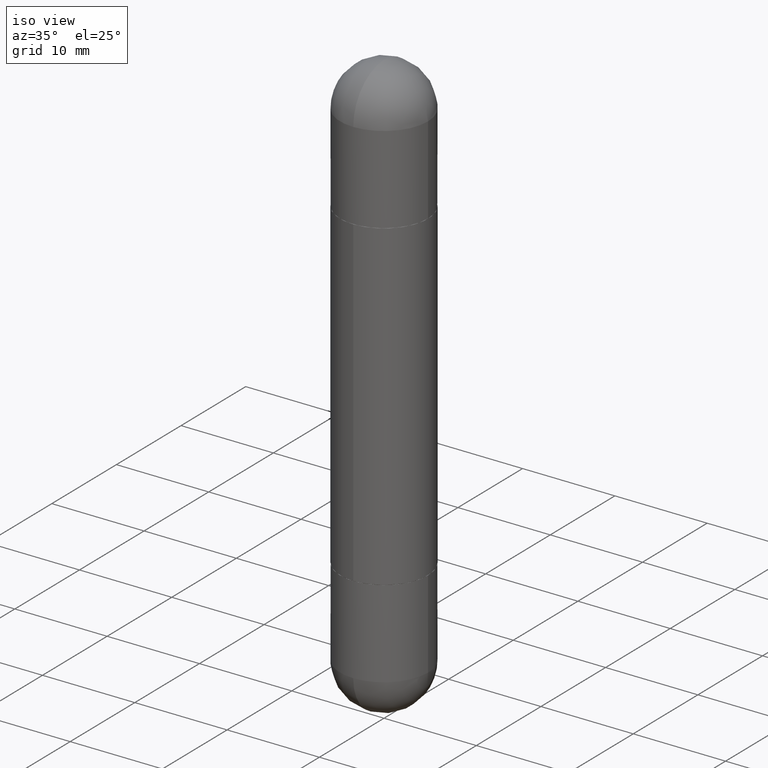
[diagram: clean part render]
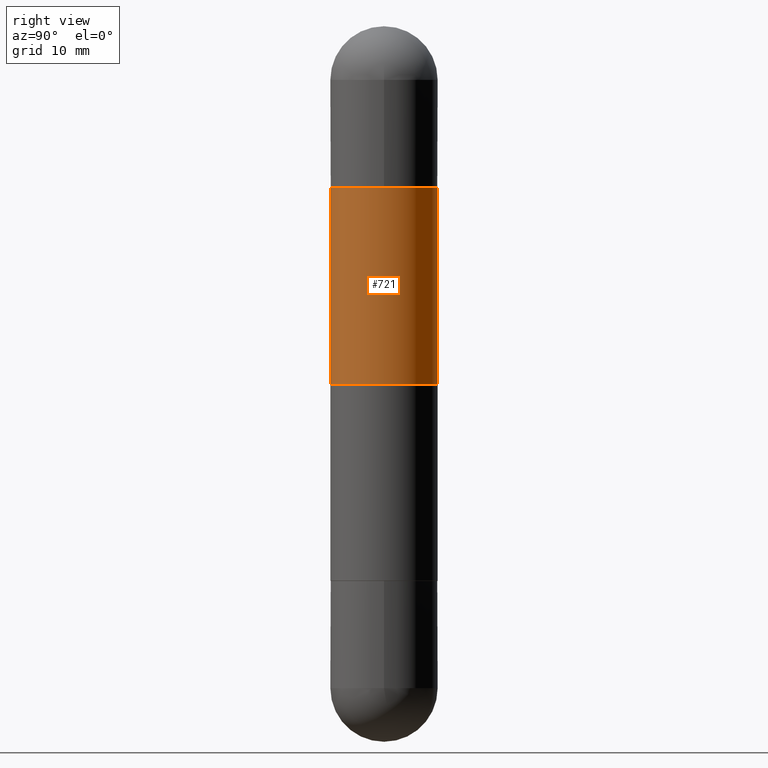
[diagram: tour spotlight — one face highlighted and labeled with its STEP entity id]
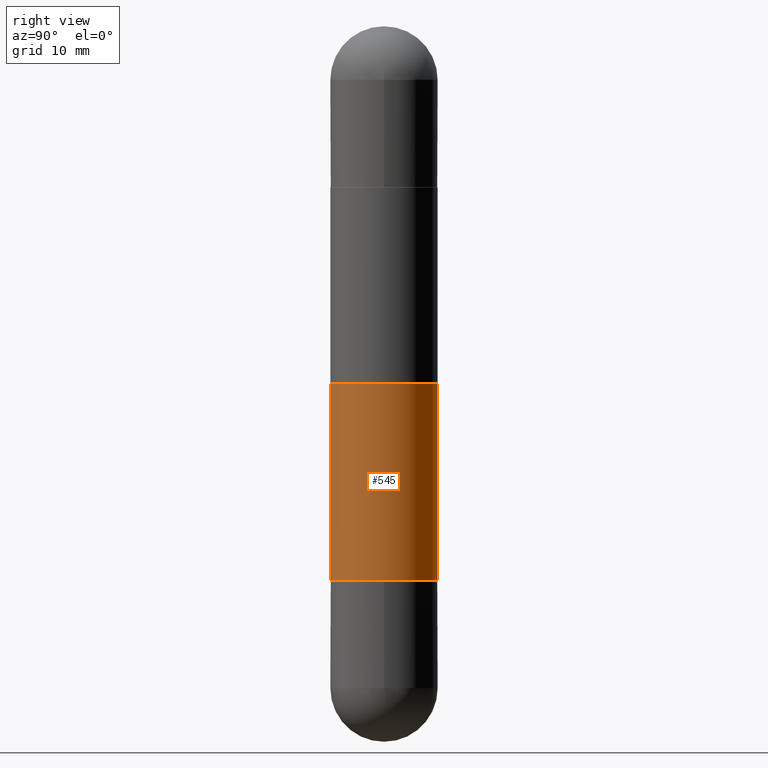
[diagram: tour spotlight — one face highlighted and labeled with its STEP entity id]
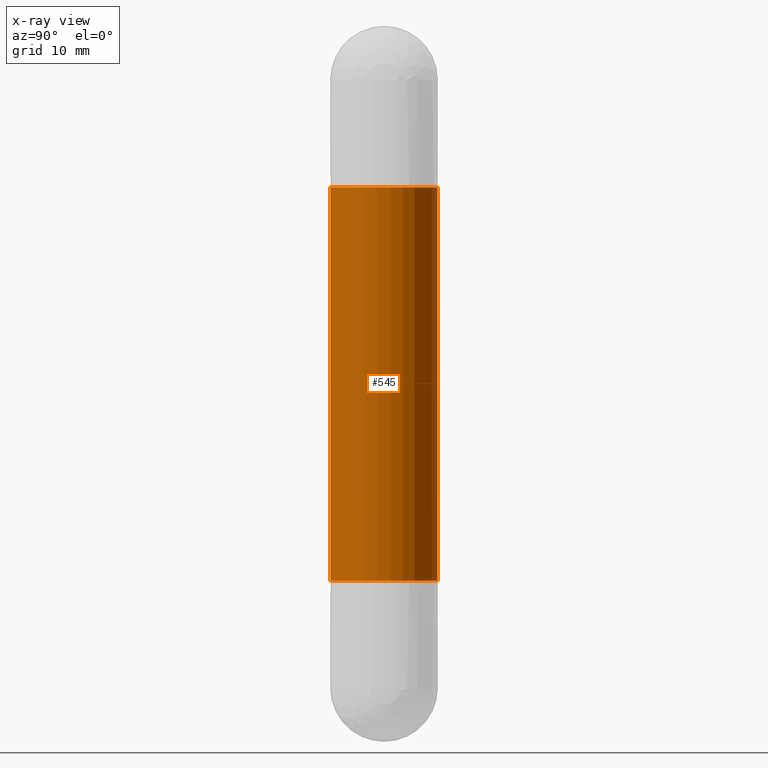
[diagram: x-ray of the same camera — body ghosted, this tour face saturated]
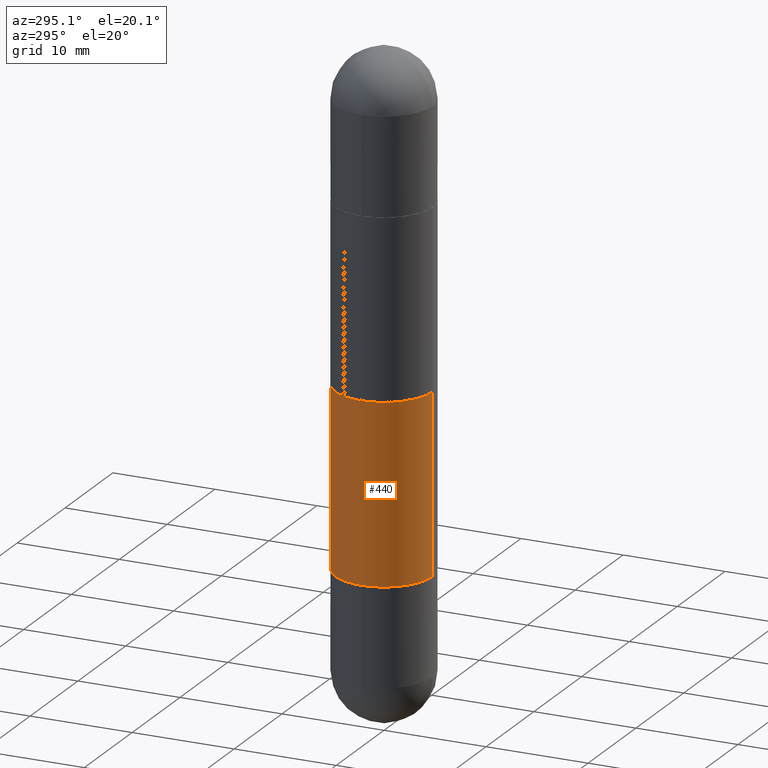
[diagram: tour spotlight — one face highlighted and labeled with its STEP entity id]
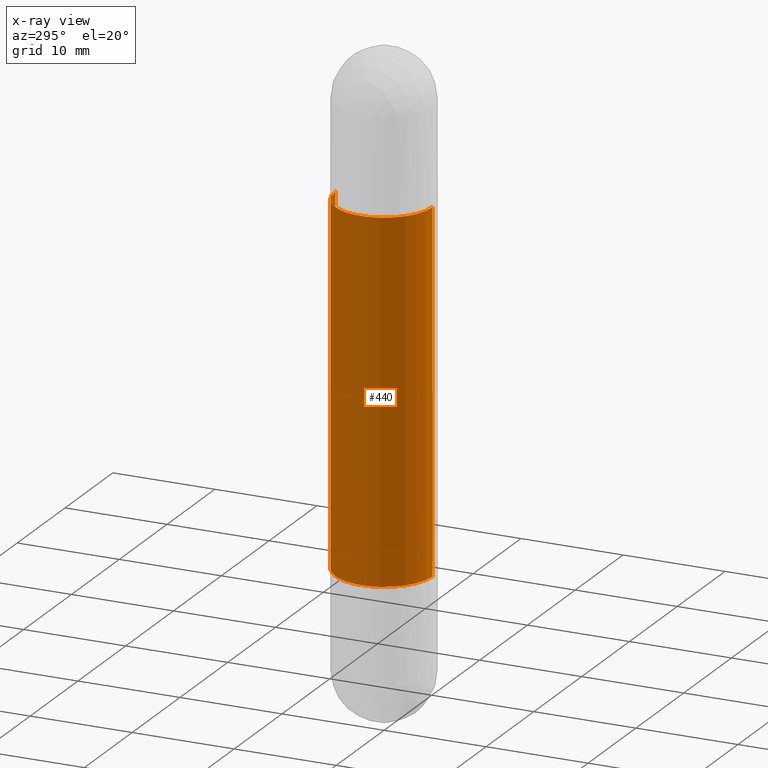
[diagram: x-ray of the same camera — body ghosted, this tour face saturated]
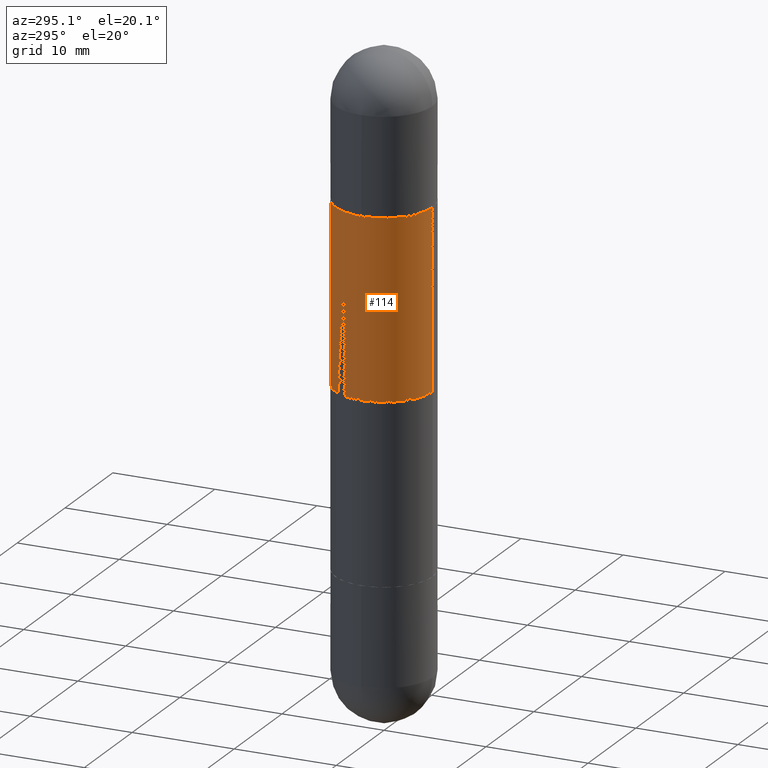
[diagram: tour spotlight — one face highlighted and labeled with its STEP entity id]
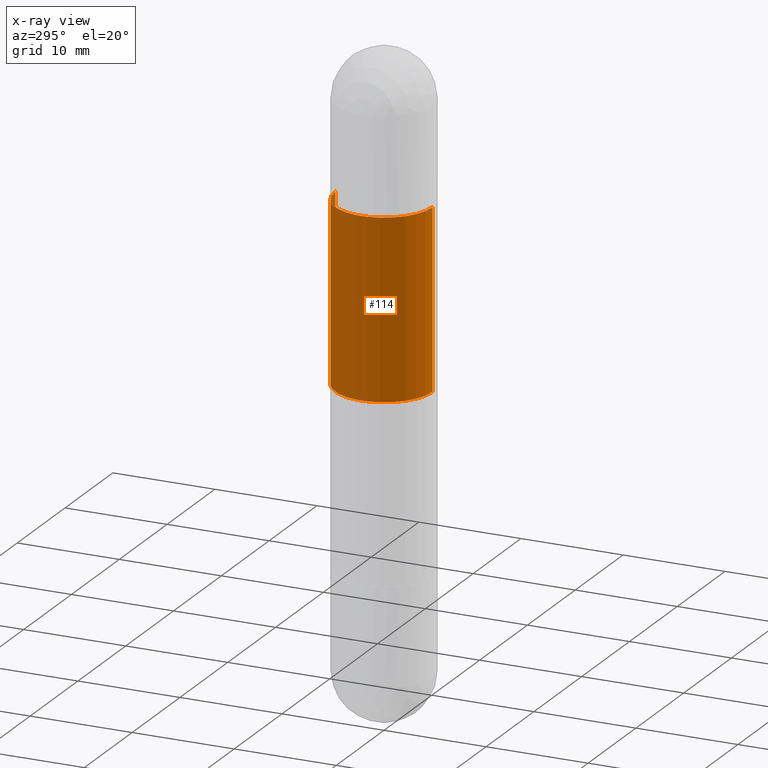
[diagram: x-ray of the same camera — body ghosted, this tour face saturated]
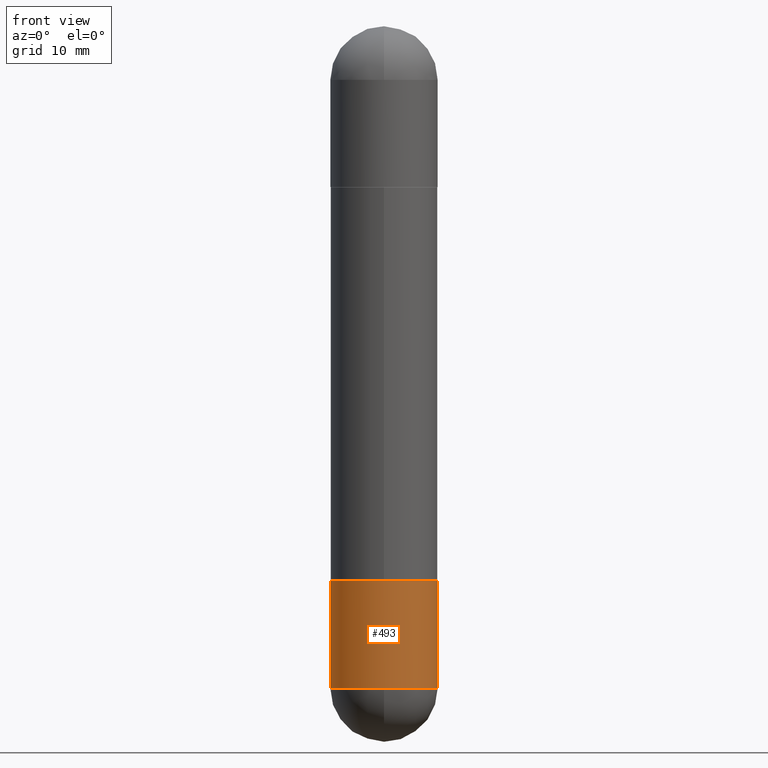
[diagram: tour spotlight — one face highlighted and labeled with its STEP entity id]
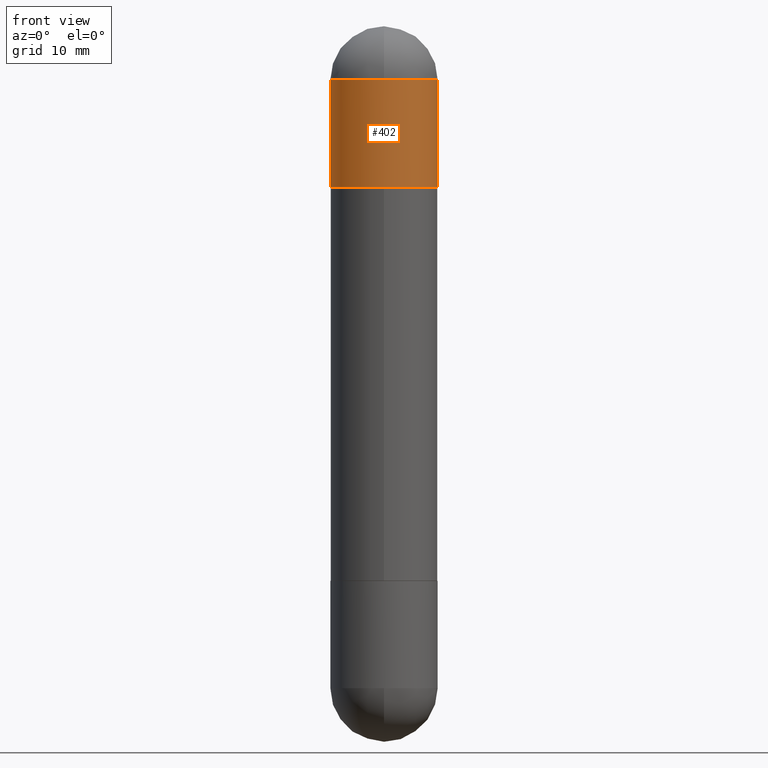
[diagram: tour spotlight — one face highlighted and labeled with its STEP entity id]
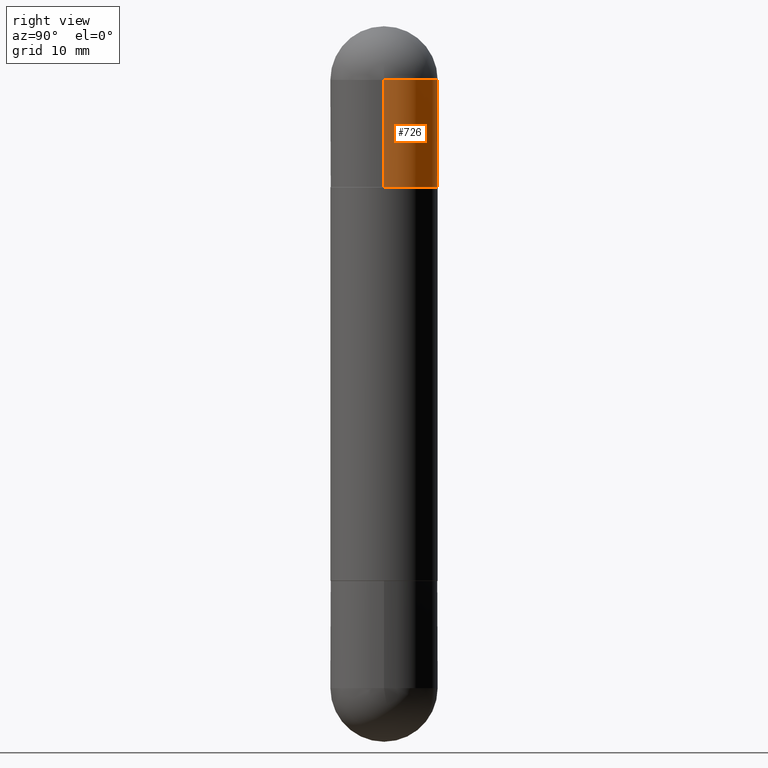
[diagram: tour spotlight — one face highlighted and labeled with its STEP entity id]
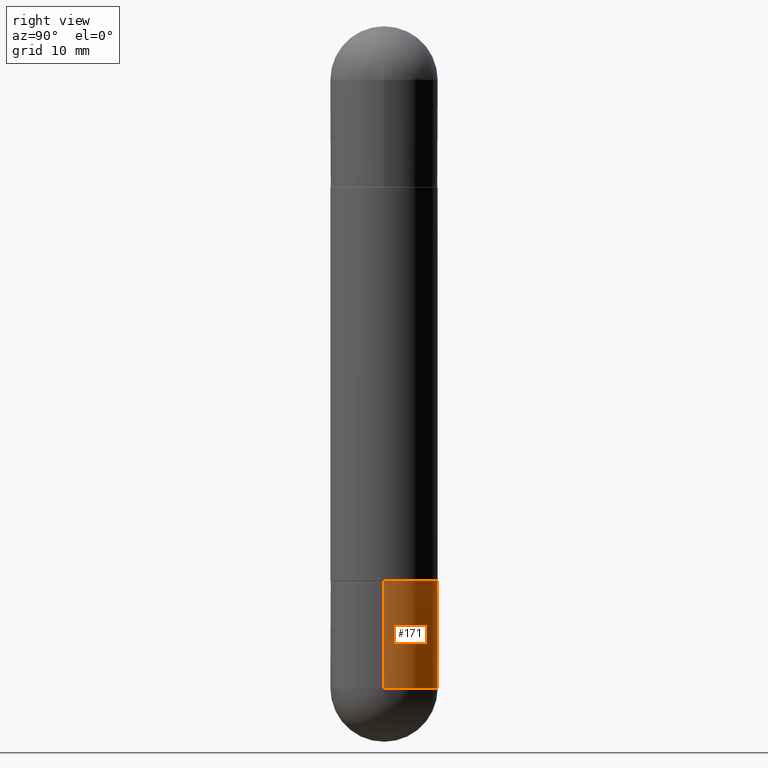
[diagram: tour spotlight — one face highlighted and labeled with its STEP entity id]
A machine part: a face-by-face anatomy tour. The part has 29 B-rep faces; the first image is the clean iso view, then the 8 largest visible faces are spotlighted one at a time (largest first), each with its STEP entity span.

Face 1 — right view, entity #721. In plain terms, the highlighted cylindrical surface (partial cylindrical patch) has radius 4.7625 mm, axis along (-0, 0, -1).
Definition (entity closure, byte-faithful):
#14 = DIRECTION ( 'NONE',  ( -2.444813990974840691E-29, 3.492419071494056237E-15, -1.000000000000000000 ) ) ;
#49 = DIRECTION ( 'NONE',  ( -6.982962677686265922E-15, -1.000000000000000000, -3.642463991552347014E-15 ) ) ;
#57 = ORIENTED_EDGE ( 'NONE', *, *, #349, .F. ) ;
#78 = CARTESIAN_POINT ( 'NONE',  ( 1.286343374582209894E-15, 0.1874999999999957534, -1.250000000000000222 ) ) ;
#101 = VECTOR ( 'NONE', #560, 39.37007874015748143 ) ;
#110 = CARTESIAN_POINT ( 'NONE',  ( -1.309305502066175797E-15, -0.1875000000000001110, -2.500000000000001332 ) ) ;
#125 = CARTESIAN_POINT ( 'NONE',  ( 3.056017488718551494E-29, -4.365523839367571874E-15, -1.250000000000000222 ) ) ;
#148 = EDGE_CURVE ( 'NONE', #385, #211, #715, .T. ) ;
#178 = CARTESIAN_POINT ( 'NONE',  ( 1.286343374582162760E-15, 0.1875000000000001110, -2.500000000000000000 ) ) ;
#211 = VERTEX_POINT ( 'NONE', #357 ) ;
#298 = CYLINDRICAL_SURFACE ( 'NONE', #779, 0.1875000000000001110 ) ;
#313 = DIRECTION ( 'NONE',  ( -2.444813990974840971E-29, 3.492419071494056237E-15, -1.000000000000000000 ) ) ;
#321 = VERTEX_POINT ( 'NONE', #579 ) ;
#322 = DIRECTION ( 'NONE',  ( -1.000000000000000000, 0.000000000000000000, 0.000000000000000000 ) ) ;
#338 = ORIENTED_EDGE ( 'NONE', *, *, #148, .F. ) ;
#341 = AXIS2_PLACEMENT_3D ( 'NONE', #125, #710, #322 ) ;
#349 = EDGE_CURVE ( 'NONE', #747, #321, #811, .T. ) ;
#357 = CARTESIAN_POINT ( 'NONE',  ( 1.286343374582210880E-15, 0.1874999999999935052, -0.5630000000000001670 ) ) ;
#366 = CARTESIAN_POINT ( 'NONE',  ( 0.000000000000000000, 0.000000000000000000, -2.500000000000000444 ) ) ;
#385 = VERTEX_POINT ( 'NONE', #805 ) ;
#406 = ORIENTED_EDGE ( 'NONE', *, *, #768, .F. ) ;
#448 = ORIENTED_EDGE ( 'NONE', *, *, #685, .T. ) ;
#536 = AXIS2_PLACEMENT_3D ( 'NONE', #745, #798, #49 ) ;
#560 = DIRECTION ( 'NONE',  ( -2.444813990974840971E-29, 3.492419071494056237E-15, -1.000000000000000000 ) ) ;
#570 = EDGE_LOOP ( 'NONE', ( #406, #338, #448, #57 ) ) ;
#579 = CARTESIAN_POINT ( 'NONE',  ( -1.309305502066136946E-15, -0.1875000000000044964, -1.250000000000000222 ) ) ;
#634 = VECTOR ( 'NONE', #313, 39.37007874015748143 ) ;
#654 = LINE ( 'NONE', #110, #101 ) ;
#685 = EDGE_CURVE ( 'NONE', #385, #321, #654, .T. ) ;
#710 = DIRECTION ( 'NONE',  ( -0.000000000000000000, -0.000000000000000000, -1.000000000000000000 ) ) ;
#715 = CIRCLE ( 'NONE', #536, 0.1875000000000002220 ) ;
#721 = ADVANCED_FACE ( 'NONE', ( #813 ), #298, .T. ) ;
#745 = CARTESIAN_POINT ( 'NONE',  ( 4.735604700518265661E-29, -6.764815741483986322E-15, -0.5630000000000008331 ) ) ;
#747 = VERTEX_POINT ( 'NONE', #78 ) ;
#758 = LINE ( 'NONE', #178, #634 ) ;
#762 = DIRECTION ( 'NONE',  ( -6.982962677686266711E-15, -1.000000000000000000, -2.913971193241879189E-15 ) ) ;
#768 = EDGE_CURVE ( 'NONE', #211, #747, #758, .T. ) ;
#779 = AXIS2_PLACEMENT_3D ( 'NONE', #366, #14, #762 ) ;
#798 = DIRECTION ( 'NONE',  ( 2.444813990974840691E-29, -3.492419071494056237E-15, 1.000000000000000000 ) ) ;
#805 = CARTESIAN_POINT ( 'NONE',  ( -1.309305502066128860E-15, -0.1875000000000069389, -0.5630000000000014992 ) ) ;
#811 = CIRCLE ( 'NONE', #341, 0.1875000000000001110 ) ;
#813 = FACE_OUTER_BOUND ( 'NONE', #570, .T. ) ;

Face 2 — right view, entity #545. An x-ray twin of the same camera follows (body ghosted, this face saturated) — the face is partly hidden behind the body. In plain terms, the highlighted cylindrical surface (partial cylindrical patch) has radius 4.7625 mm, axis along (-0, 0, -1).
Definition (entity closure, byte-faithful):
#29 = CARTESIAN_POINT ( 'NONE',  ( 0.000000000000000000, 0.000000000000000000, -2.500000000000000444 ) ) ;
#53 = VERTEX_POINT ( 'NONE', #267 ) ;
#89 = ORIENTED_EDGE ( 'NONE', *, *, #683, .F. ) ;
#94 = CYLINDRICAL_SURFACE ( 'NONE', #283, 0.1875000000000001110 ) ;
#111 = VERTEX_POINT ( 'NONE', #286 ) ;
#123 = CARTESIAN_POINT ( 'NONE',  ( 4.735604700518265661E-29, -6.764815741483986322E-15, -0.5630000000000008331 ) ) ;
#195 = ORIENTED_EDGE ( 'NONE', *, *, #786, .T. ) ;
#205 = DIRECTION ( 'NONE',  ( -6.982962677686265922E-15, -1.000000000000000000, -3.642463991552347014E-15 ) ) ;
#219 = DIRECTION ( 'NONE',  ( -6.982962677686265922E-15, -1.000000000000000000, 2.913971193241877216E-15 ) ) ;
#225 = DIRECTION ( 'NONE',  ( -2.444813990974840691E-29, 3.492419071494056237E-15, -1.000000000000000000 ) ) ;
#233 = ORIENTED_EDGE ( 'NONE', *, *, #557, .T. ) ;
#249 = DIRECTION ( 'NONE',  ( -2.444813990974840971E-29, 3.492419071494056237E-15, -1.000000000000000000 ) ) ;
#257 = VECTOR ( 'NONE', #588, 39.37007874015748143 ) ;
#267 = CARTESIAN_POINT ( 'NONE',  ( 1.286343374582210880E-15, 0.1874999999999935052, -0.5630000000000001670 ) ) ;
#273 = CIRCLE ( 'NONE', #729, 0.1875000000000002220 ) ;
#278 = VERTEX_POINT ( 'NONE', #318 ) ;
#283 = AXIS2_PLACEMENT_3D ( 'NONE', #29, #225, #612 ) ;
#286 = CARTESIAN_POINT ( 'NONE',  ( 1.286343374582193722E-15, 0.1874999999999934497, -1.937000000000000499 ) ) ;
#300 = LINE ( 'NONE', #436, #607 ) ;
#318 = CARTESIAN_POINT ( 'NONE',  ( -1.309305502066129254E-15, -0.1875000000000069944, -1.936999999999999389 ) ) ;
#331 = LINE ( 'NONE', #362, #257 ) ;
#362 = CARTESIAN_POINT ( 'NONE',  ( -1.309305502066175797E-15, -0.1875000000000001110, -2.500000000000001332 ) ) ;
#427 = CARTESIAN_POINT ( 'NONE',  ( -1.309305502066128860E-15, -0.1875000000000069389, -0.5630000000000014992 ) ) ;
#436 = CARTESIAN_POINT ( 'NONE',  ( 1.286343374582162760E-15, 0.1875000000000001110, -2.500000000000000000 ) ) ;
#466 = FACE_OUTER_BOUND ( 'NONE', #750, .T. ) ;
#545 = ADVANCED_FACE ( 'NONE', ( #466 ), #94, .T. ) ;
#557 = EDGE_CURVE ( 'NONE', #278, #111, #273, .T. ) ;
#588 = DIRECTION ( 'NONE',  ( -2.444813990974840971E-29, 3.492419071494056237E-15, -1.000000000000000000 ) ) ;
#596 = CIRCLE ( 'NONE', #717, 0.1875000000000002220 ) ;
#601 = CARTESIAN_POINT ( 'NONE',  ( 4.735604700518265661E-29, -6.764815741483986322E-15, -1.936999999999999833 ) ) ;
#607 = VECTOR ( 'NONE', #249, 39.37007874015748143 ) ;
#612 = DIRECTION ( 'NONE',  ( -6.982962677686266711E-15, -1.000000000000000000, -2.913971193241879189E-15 ) ) ;
#633 = DIRECTION ( 'NONE',  ( 2.444813990974840691E-29, -3.492419071494056237E-15, 1.000000000000000000 ) ) ;
#649 = ORIENTED_EDGE ( 'NONE', *, *, #711, .F. ) ;
#676 = DIRECTION ( 'NONE',  ( -2.444813990974840691E-29, 3.492419071494056237E-15, 1.000000000000000000 ) ) ;
#683 = EDGE_CURVE ( 'NONE', #53, #111, #300, .T. ) ;
#711 = EDGE_CURVE ( 'NONE', #817, #53, #596, .T. ) ;
#717 = AXIS2_PLACEMENT_3D ( 'NONE', #123, #633, #205 ) ;
#729 = AXIS2_PLACEMENT_3D ( 'NONE', #601, #676, #219 ) ;
#750 = EDGE_LOOP ( 'NONE', ( #89, #649, #195, #233 ) ) ;
#786 = EDGE_CURVE ( 'NONE', #817, #278, #331, .T. ) ;
#817 = VERTEX_POINT ( 'NONE', #427 ) ;

Face 3 — auxiliary view, entity #440. An x-ray twin of the same camera follows (body ghosted, this face saturated) — the face is partly hidden behind the body. In plain terms, the highlighted cylindrical surface (partial cylindrical patch) has radius 4.7625 mm, axis along (-0, 0, -1).
Definition (entity closure, byte-faithful):
#26 = DIRECTION ( 'NONE',  ( -6.982962677686265922E-15, -1.000000000000000000, -3.642463991552347014E-15 ) ) ;
#53 = VERTEX_POINT ( 'NONE', #267 ) ;
#70 = CARTESIAN_POINT ( 'NONE',  ( 4.735604700518265661E-29, -6.764815741483986322E-15, -1.936999999999999833 ) ) ;
#87 = CARTESIAN_POINT ( 'NONE',  ( 4.735604700518265661E-29, -6.764815741483986322E-15, -0.5630000000000008331 ) ) ;
#111 = VERTEX_POINT ( 'NONE', #286 ) ;
#138 = CARTESIAN_POINT ( 'NONE',  ( 0.000000000000000000, 0.000000000000000000, -2.500000000000000444 ) ) ;
#201 = FACE_OUTER_BOUND ( 'NONE', #458, .T. ) ;
#228 = AXIS2_PLACEMENT_3D ( 'NONE', #70, #636, #756 ) ;
#230 = CIRCLE ( 'NONE', #498, 0.1875000000000002220 ) ;
#249 = DIRECTION ( 'NONE',  ( -2.444813990974840971E-29, 3.492419071494056237E-15, -1.000000000000000000 ) ) ;
#257 = VECTOR ( 'NONE', #588, 39.37007874015748143 ) ;
#264 = ORIENTED_EDGE ( 'NONE', *, *, #786, .F. ) ;
#267 = CARTESIAN_POINT ( 'NONE',  ( 1.286343374582210880E-15, 0.1874999999999935052, -0.5630000000000001670 ) ) ;
#277 = DIRECTION ( 'NONE',  ( -6.982962677686266711E-15, -1.000000000000000000, -2.913971193241879189E-15 ) ) ;
#278 = VERTEX_POINT ( 'NONE', #318 ) ;
#286 = CARTESIAN_POINT ( 'NONE',  ( 1.286343374582193722E-15, 0.1874999999999934497, -1.937000000000000499 ) ) ;
#300 = LINE ( 'NONE', #436, #607 ) ;
#318 = CARTESIAN_POINT ( 'NONE',  ( -1.309305502066129254E-15, -0.1875000000000069944, -1.936999999999999389 ) ) ;
#331 = LINE ( 'NONE', #362, #257 ) ;
#332 = EDGE_CURVE ( 'NONE', #111, #278, #400, .T. ) ;
#344 = DIRECTION ( 'NONE',  ( 2.444813990974840691E-29, -3.492419071494056237E-15, 1.000000000000000000 ) ) ;
#362 = CARTESIAN_POINT ( 'NONE',  ( -1.309305502066175797E-15, -0.1875000000000001110, -2.500000000000001332 ) ) ;
#399 = CYLINDRICAL_SURFACE ( 'NONE', #567, 0.1875000000000001110 ) ;
#400 = CIRCLE ( 'NONE', #228, 0.1875000000000002220 ) ;
#427 = CARTESIAN_POINT ( 'NONE',  ( -1.309305502066128860E-15, -0.1875000000000069389, -0.5630000000000014992 ) ) ;
#436 = CARTESIAN_POINT ( 'NONE',  ( 1.286343374582162760E-15, 0.1875000000000001110, -2.500000000000000000 ) ) ;
#437 = ORIENTED_EDGE ( 'NONE', *, *, #683, .T. ) ;
#440 = ADVANCED_FACE ( 'NONE', ( #201 ), #399, .T. ) ;
#458 = EDGE_LOOP ( 'NONE', ( #517, #437, #638, #264 ) ) ;
#498 = AXIS2_PLACEMENT_3D ( 'NONE', #87, #344, #26 ) ;
#516 = EDGE_CURVE ( 'NONE', #53, #817, #230, .T. ) ;
#517 = ORIENTED_EDGE ( 'NONE', *, *, #516, .F. ) ;
#519 = DIRECTION ( 'NONE',  ( -2.444813990974840691E-29, 3.492419071494056237E-15, -1.000000000000000000 ) ) ;
#567 = AXIS2_PLACEMENT_3D ( 'NONE', #138, #519, #277 ) ;
#588 = DIRECTION ( 'NONE',  ( -2.444813990974840971E-29, 3.492419071494056237E-15, -1.000000000000000000 ) ) ;
#607 = VECTOR ( 'NONE', #249, 39.37007874015748143 ) ;
#636 = DIRECTION ( 'NONE',  ( -2.444813990974840691E-29, 3.492419071494056237E-15, 1.000000000000000000 ) ) ;
#638 = ORIENTED_EDGE ( 'NONE', *, *, #332, .T. ) ;
#683 = EDGE_CURVE ( 'NONE', #53, #111, #300, .T. ) ;
#756 = DIRECTION ( 'NONE',  ( -6.982962677686265922E-15, -1.000000000000000000, 2.913971193241877216E-15 ) ) ;
#786 = EDGE_CURVE ( 'NONE', #817, #278, #331, .T. ) ;
#817 = VERTEX_POINT ( 'NONE', #427 ) ;

Face 4 — auxiliary view, entity #114. An x-ray twin of the same camera follows (body ghosted, this face saturated) — the face is partly hidden behind the body. In plain terms, the highlighted cylindrical surface (partial cylindrical patch) has radius 4.7625 mm, axis along (-0, 0, -1).
Definition (entity closure, byte-faithful):
#3 = ORIENTED_EDGE ( 'NONE', *, *, #685, .F. ) ;
#74 = AXIS2_PLACEMENT_3D ( 'NONE', #173, #413, #731 ) ;
#78 = CARTESIAN_POINT ( 'NONE',  ( 1.286343374582209894E-15, 0.1874999999999957534, -1.250000000000000222 ) ) ;
#83 = EDGE_CURVE ( 'NONE', #211, #385, #455, .T. ) ;
#100 = ORIENTED_EDGE ( 'NONE', *, *, #558, .F. ) ;
#101 = VECTOR ( 'NONE', #560, 39.37007874015748143 ) ;
#102 = CARTESIAN_POINT ( 'NONE',  ( 4.735604700518265661E-29, -6.764815741483986322E-15, -0.5630000000000008331 ) ) ;
#108 = CARTESIAN_POINT ( 'NONE',  ( 0.000000000000000000, 0.000000000000000000, -2.500000000000000444 ) ) ;
#110 = CARTESIAN_POINT ( 'NONE',  ( -1.309305502066175797E-15, -0.1875000000000001110, -2.500000000000001332 ) ) ;
#114 = ADVANCED_FACE ( 'NONE', ( #351 ), #673, .T. ) ;
#173 = CARTESIAN_POINT ( 'NONE',  ( 3.056017488718551494E-29, -4.365523839367571874E-15, -1.250000000000000222 ) ) ;
#178 = CARTESIAN_POINT ( 'NONE',  ( 1.286343374582162760E-15, 0.1875000000000001110, -2.500000000000000000 ) ) ;
#180 = AXIS2_PLACEMENT_3D ( 'NONE', #108, #425, #485 ) ;
#211 = VERTEX_POINT ( 'NONE', #357 ) ;
#299 = DIRECTION ( 'NONE',  ( 2.444813990974840691E-29, -3.492419071494056237E-15, 1.000000000000000000 ) ) ;
#313 = DIRECTION ( 'NONE',  ( -2.444813990974840971E-29, 3.492419071494056237E-15, -1.000000000000000000 ) ) ;
#321 = VERTEX_POINT ( 'NONE', #579 ) ;
#351 = FACE_OUTER_BOUND ( 'NONE', #379, .T. ) ;
#357 = CARTESIAN_POINT ( 'NONE',  ( 1.286343374582210880E-15, 0.1874999999999935052, -0.5630000000000001670 ) ) ;
#379 = EDGE_LOOP ( 'NONE', ( #383, #597, #100, #3 ) ) ;
#383 = ORIENTED_EDGE ( 'NONE', *, *, #83, .F. ) ;
#385 = VERTEX_POINT ( 'NONE', #805 ) ;
#413 = DIRECTION ( 'NONE',  ( -0.000000000000000000, -0.000000000000000000, -1.000000000000000000 ) ) ;
#425 = DIRECTION ( 'NONE',  ( -2.444813990974840691E-29, 3.492419071494056237E-15, -1.000000000000000000 ) ) ;
#455 = CIRCLE ( 'NONE', #593, 0.1875000000000002220 ) ;
#482 = CIRCLE ( 'NONE', #74, 0.1875000000000001110 ) ;
#485 = DIRECTION ( 'NONE',  ( -6.982962677686266711E-15, -1.000000000000000000, -2.913971193241879189E-15 ) ) ;
#558 = EDGE_CURVE ( 'NONE', #321, #747, #482, .T. ) ;
#560 = DIRECTION ( 'NONE',  ( -2.444813990974840971E-29, 3.492419071494056237E-15, -1.000000000000000000 ) ) ;
#579 = CARTESIAN_POINT ( 'NONE',  ( -1.309305502066136946E-15, -0.1875000000000044964, -1.250000000000000222 ) ) ;
#593 = AXIS2_PLACEMENT_3D ( 'NONE', #102, #299, #604 ) ;
#597 = ORIENTED_EDGE ( 'NONE', *, *, #768, .T. ) ;
#604 = DIRECTION ( 'NONE',  ( -6.982962677686265922E-15, -1.000000000000000000, -3.642463991552347014E-15 ) ) ;
#634 = VECTOR ( 'NONE', #313, 39.37007874015748143 ) ;
#654 = LINE ( 'NONE', #110, #101 ) ;
#673 = CYLINDRICAL_SURFACE ( 'NONE', #180, 0.1875000000000001110 ) ;
#685 = EDGE_CURVE ( 'NONE', #385, #321, #654, .T. ) ;
#731 = DIRECTION ( 'NONE',  ( -1.000000000000000000, 0.000000000000000000, 0.000000000000000000 ) ) ;
#747 = VERTEX_POINT ( 'NONE', #78 ) ;
#758 = LINE ( 'NONE', #178, #634 ) ;
#768 = EDGE_CURVE ( 'NONE', #211, #747, #758, .T. ) ;
#805 = CARTESIAN_POINT ( 'NONE',  ( -1.309305502066128860E-15, -0.1875000000000069389, -0.5630000000000014992 ) ) ;

Face 5 — front view, entity #493. In plain terms, the highlighted cylindrical surface (partial cylindrical patch) has radius 4.7625 mm, axis along (-0, 0, 1).
Definition (entity closure, byte-faithful):
#82 = CARTESIAN_POINT ( 'NONE',  ( 5.655146614303128380E-29, -8.074050596074775072E-15, -2.312500000000000000 ) ) ;
#107 = CARTESIAN_POINT ( 'NONE',  ( 4.739318546386794397E-29, -6.766490834678016045E-15, -1.937999999999999945 ) ) ;
#118 = CARTESIAN_POINT ( 'NONE',  ( 5.655146614303128380E-29, -8.074050596074775072E-15, -2.312500000000000000 ) ) ;
#119 = DIRECTION ( 'NONE',  ( -2.445468806185136877E-29, 3.491481338843145188E-15, 1.000000000000000000 ) ) ;
#157 = CARTESIAN_POINT ( 'NONE',  ( 0.1875000000000000555, -8.729576217442571356E-15, -2.312500000000000000 ) ) ;
#182 = ORIENTED_EDGE ( 'NONE', *, *, #559, .F. ) ;
#183 = AXIS2_PLACEMENT_3D ( 'NONE', #107, #788, #801 ) ;
#206 = VECTOR ( 'NONE', #656, 39.37007874015748143 ) ;
#210 = LINE ( 'NONE', #460, #206 ) ;
#236 = VERTEX_POINT ( 'NONE', #157 ) ;
#241 = CIRCLE ( 'NONE', #272, 0.1875000000000000555 ) ;
#263 = CYLINDRICAL_SURFACE ( 'NONE', #650, 0.1875000000000000555 ) ;
#272 = AXIS2_PLACEMENT_3D ( 'NONE', #118, #450, #771 ) ;
#305 = EDGE_CURVE ( 'NONE', #705, #381, #241, .T. ) ;
#324 = ORIENTED_EDGE ( 'NONE', *, *, #305, .T. ) ;
#337 = FACE_OUTER_BOUND ( 'NONE', #815, .T. ) ;
#356 = CARTESIAN_POINT ( 'NONE',  ( 0.1875000000000000278, -8.075796336744191053E-15, -1.937999999999999945 ) ) ;
#364 = AXIS2_PLACEMENT_3D ( 'NONE', #82, #668, #776 ) ;
#378 = VECTOR ( 'NONE', #119, 39.37007874015748143 ) ;
#381 = VERTEX_POINT ( 'NONE', #706 ) ;
#386 = VERTEX_POINT ( 'NONE', #598 ) ;
#387 = DIRECTION ( 'NONE',  ( 1.000000000000000000, -6.982962677686265922E-15, 4.876176775795935793E-29 ) ) ;
#450 = DIRECTION ( 'NONE',  ( -2.445468806185136597E-29, 3.491481338843145583E-15, 1.000000000000000000 ) ) ;
#451 = EDGE_CURVE ( 'NONE', #236, #616, #210, .T. ) ;
#460 = CARTESIAN_POINT ( 'NONE',  ( 0.1875000000000000555, -1.309305502066175205E-15, 9.142831454617382414E-30 ) ) ;
#468 = CIRCLE ( 'NONE', #364, 0.1875000000000000555 ) ;
#491 = EDGE_CURVE ( 'NONE', #381, #236, #468, .T. ) ;
#492 = LINE ( 'NONE', #749, #378 ) ;
#493 = ADVANCED_FACE ( 'NONE', ( #337 ), #263, .T. ) ;
#505 = ORIENTED_EDGE ( 'NONE', *, *, #807, .F. ) ;
#549 = ORIENTED_EDGE ( 'NONE', *, *, #491, .T. ) ;
#559 = EDGE_CURVE ( 'NONE', #386, #616, #742, .T. ) ;
#568 = CARTESIAN_POINT ( 'NONE',  ( -0.1875000000000000555, -6.088003085826207710E-15, -2.312500000000000000 ) ) ;
#598 = CARTESIAN_POINT ( 'NONE',  ( -0.1875000000000000278, -6.088003085826206921E-15, -1.937999999999999945 ) ) ;
#616 = VERTEX_POINT ( 'NONE', #356 ) ;
#650 = AXIS2_PLACEMENT_3D ( 'NONE', #782, #724, #387 ) ;
#656 = DIRECTION ( 'NONE',  ( -2.445468806185136877E-29, 3.491481338843145188E-15, 1.000000000000000000 ) ) ;
#668 = DIRECTION ( 'NONE',  ( -2.445468806185136597E-29, 3.491481338843145583E-15, 1.000000000000000000 ) ) ;
#705 = VERTEX_POINT ( 'NONE', #568 ) ;
#706 = CARTESIAN_POINT ( 'NONE',  ( -1.332267629550134009E-15, -0.1875000000000084932, -2.312499999999999556 ) ) ;
#724 = DIRECTION ( 'NONE',  ( -2.445468806185136597E-29, 3.491481338843145583E-15, 1.000000000000000000 ) ) ;
#742 = CIRCLE ( 'NONE', #183, 0.1875000000000000278 ) ;
#749 = CARTESIAN_POINT ( 'NONE',  ( -0.1875000000000000555, 1.332267629550188243E-15, -9.223003294227950793E-30 ) ) ;
#771 = DIRECTION ( 'NONE',  ( 1.000000000000000000, -6.982962677686270655E-15, 0.000000000000000000 ) ) ;
#776 = DIRECTION ( 'NONE',  ( 1.000000000000000000, -6.982962677686270655E-15, 0.000000000000000000 ) ) ;
#782 = CARTESIAN_POINT ( 'NONE',  ( 0.000000000000000000, 0.000000000000000000, 0.000000000000000000 ) ) ;
#788 = DIRECTION ( 'NONE',  ( -2.445468806185136597E-29, 3.491481338843145583E-15, 1.000000000000000000 ) ) ;
#801 = DIRECTION ( 'NONE',  ( 1.000000000000000000, -6.982962677686266711E-15, 0.000000000000000000 ) ) ;
#803 = ORIENTED_EDGE ( 'NONE', *, *, #451, .T. ) ;
#807 = EDGE_CURVE ( 'NONE', #705, #386, #492, .T. ) ;
#815 = EDGE_LOOP ( 'NONE', ( #505, #324, #549, #803, #182 ) ) ;

Face 6 — front view, entity #402. In plain terms, the highlighted cylindrical surface (partial cylindrical patch) has radius 4.7625 mm, axis along (-0, 0, -1).
Definition (entity closure, byte-faithful):
#4 = VERTEX_POINT ( 'NONE', #723 ) ;
#6 = AXIS2_PLACEMENT_3D ( 'NONE', #530, #393, #13 ) ;
#7 = VECTOR ( 'NONE', #232, 39.37007874015748143 ) ;
#9 = CYLINDRICAL_SURFACE ( 'NONE', #293, 0.1875000000000000555 ) ;
#13 = DIRECTION ( 'NONE',  ( 1.000000000000000000, -6.982962677686270655E-15, 0.000000000000000000 ) ) ;
#22 = CARTESIAN_POINT ( 'NONE',  ( 0.000000000000000000, 0.000000000000000000, -2.500000000000000444 ) ) ;
#40 = CARTESIAN_POINT ( 'NONE',  ( 4.739318546386794397E-29, -6.766490834678016045E-15, -0.5620000000000007212 ) ) ;
#42 = CARTESIAN_POINT ( 'NONE',  ( -1.286343374582108525E-15, -0.1875000000000084932, -0.1875000000000013045 ) ) ;
#55 = CARTESIAN_POINT ( 'NONE',  ( -0.1875000000000000555, 1.286343374582162562E-15, -2.500000000000000444 ) ) ;
#67 = ORIENTED_EDGE ( 'NONE', *, *, #591, .F. ) ;
#91 = DIRECTION ( 'NONE',  ( -2.445468806185136597E-29, 3.491481338843145583E-15, -1.000000000000000000 ) ) ;
#105 = LINE ( 'NONE', #483, #7 ) ;
#106 = DIRECTION ( 'NONE',  ( 1.000000000000000000, -6.982962677686270655E-15, 0.000000000000000000 ) ) ;
#136 = VERTEX_POINT ( 'NONE', #546 ) ;
#162 = CARTESIAN_POINT ( 'NONE',  ( 5.655146614303128380E-29, -8.074050596074775072E-15, -0.1875000000000006661 ) ) ;
#185 = DIRECTION ( 'NONE',  ( -2.445468806185136877E-29, 3.491481338843145188E-15, -1.000000000000000000 ) ) ;
#209 = EDGE_CURVE ( 'NONE', #4, #645, #741, .T. ) ;
#227 = DIRECTION ( 'NONE',  ( 1.000000000000000000, -6.982962677686266711E-15, 0.000000000000000000 ) ) ;
#232 = DIRECTION ( 'NONE',  ( -2.445468806185136877E-29, 3.491481338843145188E-15, -1.000000000000000000 ) ) ;
#289 = DIRECTION ( 'NONE',  ( 2.445468806185136597E-29, -3.491481338843145583E-15, 1.000000000000000000 ) ) ;
#293 = AXIS2_PLACEMENT_3D ( 'NONE', #22, #91, #582 ) ;
#310 = CIRCLE ( 'NONE', #569, 0.1875000000000000278 ) ;
#326 = VECTOR ( 'NONE', #185, 39.37007874015748143 ) ;
#334 = FACE_OUTER_BOUND ( 'NONE', #578, .T. ) ;
#350 = CARTESIAN_POINT ( 'NONE',  ( -0.1875000000000000278, -6.133927340794232602E-15, -0.5620000000000007212 ) ) ;
#363 = AXIS2_PLACEMENT_3D ( 'NONE', #162, #793, #106 ) ;
#369 = LINE ( 'NONE', #55, #326 ) ;
#393 = DIRECTION ( 'NONE',  ( 2.445468806185136597E-29, -3.491481338843145583E-15, 1.000000000000000000 ) ) ;
#402 = ADVANCED_FACE ( 'NONE', ( #334 ), #9, .T. ) ;
#416 = CIRCLE ( 'NONE', #6, 0.1875000000000000555 ) ;
#439 = ORIENTED_EDGE ( 'NONE', *, *, #209, .F. ) ;
#453 = CARTESIAN_POINT ( 'NONE',  ( 0.1875000000000000278, -8.075796336744191053E-15, -0.5620000000000007212 ) ) ;
#478 = VERTEX_POINT ( 'NONE', #453 ) ;
#483 = CARTESIAN_POINT ( 'NONE',  ( 0.1875000000000000555, -1.309305502066175205E-15, -2.500000000000000444 ) ) ;
#489 = EDGE_CURVE ( 'NONE', #645, #136, #416, .T. ) ;
#494 = ORIENTED_EDGE ( 'NONE', *, *, #688, .T. ) ;
#530 = CARTESIAN_POINT ( 'NONE',  ( 5.655146614303128380E-29, -8.074050596074775072E-15, -0.1875000000000006661 ) ) ;
#546 = CARTESIAN_POINT ( 'NONE',  ( 0.1875000000000000555, -8.729576217442571356E-15, -0.1875000000000006661 ) ) ;
#569 = AXIS2_PLACEMENT_3D ( 'NONE', #40, #289, #227 ) ;
#578 = EDGE_LOOP ( 'NONE', ( #439, #494, #580, #67, #623 ) ) ;
#580 = ORIENTED_EDGE ( 'NONE', *, *, #626, .T. ) ;
#582 = DIRECTION ( 'NONE',  ( 1.000000000000000000, -6.982962677686265922E-15, 0.000000000000000000 ) ) ;
#591 = EDGE_CURVE ( 'NONE', #136, #478, #105, .T. ) ;
#623 = ORIENTED_EDGE ( 'NONE', *, *, #489, .F. ) ;
#626 = EDGE_CURVE ( 'NONE', #628, #478, #310, .T. ) ;
#628 = VERTEX_POINT ( 'NONE', #350 ) ;
#645 = VERTEX_POINT ( 'NONE', #42 ) ;
#688 = EDGE_CURVE ( 'NONE', #4, #628, #369, .T. ) ;
#723 = CARTESIAN_POINT ( 'NONE',  ( -0.1875000000000000555, -6.133927340794233391E-15, -0.1875000000000006661 ) ) ;
#741 = CIRCLE ( 'NONE', #363, 0.1875000000000000555 ) ;
#793 = DIRECTION ( 'NONE',  ( 2.445468806185136597E-29, -3.491481338843145583E-15, 1.000000000000000000 ) ) ;

Face 7 — right view, entity #726. In plain terms, the highlighted cylindrical surface (partial cylindrical patch) has radius 4.7625 mm, axis along (-0, 0, -1).
Definition (entity closure, byte-faithful):
#4 = VERTEX_POINT ( 'NONE', #723 ) ;
#7 = VECTOR ( 'NONE', #232, 39.37007874015748143 ) ;
#55 = CARTESIAN_POINT ( 'NONE',  ( -0.1875000000000000555, 1.286343374582162562E-15, -2.500000000000000444 ) ) ;
#60 = DIRECTION ( 'NONE',  ( 1.000000000000000000, -6.982962677686265922E-15, 0.000000000000000000 ) ) ;
#72 = CIRCLE ( 'NONE', #374, 0.1875000000000000555 ) ;
#105 = LINE ( 'NONE', #483, #7 ) ;
#117 = CYLINDRICAL_SURFACE ( 'NONE', #619, 0.1875000000000000555 ) ;
#130 = AXIS2_PLACEMENT_3D ( 'NONE', #409, #746, #603 ) ;
#136 = VERTEX_POINT ( 'NONE', #546 ) ;
#141 = DIRECTION ( 'NONE',  ( 2.445468806185136597E-29, -3.491481338843145583E-15, 1.000000000000000000 ) ) ;
#143 = CIRCLE ( 'NONE', #130, 0.1875000000000000278 ) ;
#185 = DIRECTION ( 'NONE',  ( -2.445468806185136877E-29, 3.491481338843145188E-15, -1.000000000000000000 ) ) ;
#202 = EDGE_CURVE ( 'NONE', #345, #4, #72, .T. ) ;
#232 = DIRECTION ( 'NONE',  ( -2.445468806185136877E-29, 3.491481338843145188E-15, -1.000000000000000000 ) ) ;
#235 = DIRECTION ( 'NONE',  ( -2.445468806185136597E-29, 3.491481338843145583E-15, -1.000000000000000000 ) ) ;
#245 = DIRECTION ( 'NONE',  ( 1.000000000000000000, -6.982962677686270655E-15, 0.000000000000000000 ) ) ;
#316 = ORIENTED_EDGE ( 'NONE', *, *, #591, .T. ) ;
#326 = VECTOR ( 'NONE', #185, 39.37007874015748143 ) ;
#345 = VERTEX_POINT ( 'NONE', #751 ) ;
#350 = CARTESIAN_POINT ( 'NONE',  ( -0.1875000000000000278, -6.133927340794232602E-15, -0.5620000000000007212 ) ) ;
#365 = DIRECTION ( 'NONE',  ( 1.000000000000000000, -6.982962677686270655E-15, 0.000000000000000000 ) ) ;
#369 = LINE ( 'NONE', #55, #326 ) ;
#372 = CARTESIAN_POINT ( 'NONE',  ( 0.000000000000000000, 0.000000000000000000, -2.500000000000000444 ) ) ;
#374 = AXIS2_PLACEMENT_3D ( 'NONE', #736, #411, #365 ) ;
#409 = CARTESIAN_POINT ( 'NONE',  ( 4.739318546386794397E-29, -6.766490834678016045E-15, -0.5620000000000007212 ) ) ;
#410 = EDGE_LOOP ( 'NONE', ( #555, #433, #518, #316, #719 ) ) ;
#411 = DIRECTION ( 'NONE',  ( 2.445468806185136597E-29, -3.491481338843145583E-15, 1.000000000000000000 ) ) ;
#418 = CIRCLE ( 'NONE', #429, 0.1875000000000000555 ) ;
#429 = AXIS2_PLACEMENT_3D ( 'NONE', #563, #141, #245 ) ;
#433 = ORIENTED_EDGE ( 'NONE', *, *, #202, .F. ) ;
#453 = CARTESIAN_POINT ( 'NONE',  ( 0.1875000000000000278, -8.075796336744191053E-15, -0.5620000000000007212 ) ) ;
#478 = VERTEX_POINT ( 'NONE', #453 ) ;
#483 = CARTESIAN_POINT ( 'NONE',  ( 0.1875000000000000555, -1.309305502066175205E-15, -2.500000000000000444 ) ) ;
#518 = ORIENTED_EDGE ( 'NONE', *, *, #743, .F. ) ;
#546 = CARTESIAN_POINT ( 'NONE',  ( 0.1875000000000000555, -8.729576217442571356E-15, -0.1875000000000006661 ) ) ;
#555 = ORIENTED_EDGE ( 'NONE', *, *, #688, .F. ) ;
#563 = CARTESIAN_POINT ( 'NONE',  ( 5.655146614303128380E-29, -8.074050596074775072E-15, -0.1875000000000006661 ) ) ;
#591 = EDGE_CURVE ( 'NONE', #136, #478, #105, .T. ) ;
#603 = DIRECTION ( 'NONE',  ( 1.000000000000000000, -6.982962677686266711E-15, 0.000000000000000000 ) ) ;
#619 = AXIS2_PLACEMENT_3D ( 'NONE', #372, #235, #60 ) ;
#628 = VERTEX_POINT ( 'NONE', #350 ) ;
#646 = EDGE_CURVE ( 'NONE', #478, #628, #143, .T. ) ;
#688 = EDGE_CURVE ( 'NONE', #4, #628, #369, .T. ) ;
#719 = ORIENTED_EDGE ( 'NONE', *, *, #646, .T. ) ;
#723 = CARTESIAN_POINT ( 'NONE',  ( -0.1875000000000000555, -6.133927340794233391E-15, -0.1875000000000006661 ) ) ;
#726 = ADVANCED_FACE ( 'NONE', ( #754 ), #117, .T. ) ;
#736 = CARTESIAN_POINT ( 'NONE',  ( 5.655146614303128380E-29, -8.074050596074775072E-15, -0.1875000000000006661 ) ) ;
#743 = EDGE_CURVE ( 'NONE', #136, #345, #418, .T. ) ;
#746 = DIRECTION ( 'NONE',  ( 2.445468806185136597E-29, -3.491481338843145583E-15, 1.000000000000000000 ) ) ;
#751 = CARTESIAN_POINT ( 'NONE',  ( 1.309305502066231017E-15, 0.1874999999999918954, -0.1875000000000000278 ) ) ;
#754 = FACE_OUTER_BOUND ( 'NONE', #410, .T. ) ;

Face 8 — right view, entity #171. In plain terms, the highlighted cylindrical surface (partial cylindrical patch) has radius 4.7625 mm, axis along (-0, 0, 1).
Definition (entity closure, byte-faithful):
#38 = FACE_OUTER_BOUND ( 'NONE', #335, .T. ) ;
#43 = CARTESIAN_POINT ( 'NONE',  ( 0.000000000000000000, 0.000000000000000000, 0.000000000000000000 ) ) ;
#45 = CIRCLE ( 'NONE', #618, 0.1875000000000000555 ) ;
#119 = DIRECTION ( 'NONE',  ( -2.445468806185136877E-29, 3.491481338843145188E-15, 1.000000000000000000 ) ) ;
#124 = ORIENTED_EDGE ( 'NONE', *, *, #475, .T. ) ;
#157 = CARTESIAN_POINT ( 'NONE',  ( 0.1875000000000000555, -8.729576217442571356E-15, -2.312500000000000000 ) ) ;
#171 = ADVANCED_FACE ( 'NONE', ( #38 ), #361, .T. ) ;
#197 = CIRCLE ( 'NONE', #728, 0.1875000000000000555 ) ;
#206 = VECTOR ( 'NONE', #656, 39.37007874015748143 ) ;
#210 = LINE ( 'NONE', #460, #206 ) ;
#236 = VERTEX_POINT ( 'NONE', #157 ) ;
#250 = ORIENTED_EDGE ( 'NONE', *, *, #807, .T. ) ;
#251 = DIRECTION ( 'NONE',  ( -2.445468806185136597E-29, 3.491481338843145583E-15, 1.000000000000000000 ) ) ;
#288 = DIRECTION ( 'NONE',  ( -2.445468806185136597E-29, 3.491481338843145583E-15, 1.000000000000000000 ) ) ;
#294 = VERTEX_POINT ( 'NONE', #576 ) ;
#323 = ORIENTED_EDGE ( 'NONE', *, *, #451, .F. ) ;
#329 = DIRECTION ( 'NONE',  ( 1.000000000000000000, -6.982962677686266711E-15, 0.000000000000000000 ) ) ;
#335 = EDGE_LOOP ( 'NONE', ( #384, #250, #561, #323, #124 ) ) ;
#356 = CARTESIAN_POINT ( 'NONE',  ( 0.1875000000000000278, -8.075796336744191053E-15, -1.937999999999999945 ) ) ;
#358 = EDGE_CURVE ( 'NONE', #294, #705, #45, .T. ) ;
#361 = CYLINDRICAL_SURFACE ( 'NONE', #752, 0.1875000000000000555 ) ;
#378 = VECTOR ( 'NONE', #119, 39.37007874015748143 ) ;
#384 = ORIENTED_EDGE ( 'NONE', *, *, #358, .T. ) ;
#386 = VERTEX_POINT ( 'NONE', #598 ) ;
#451 = EDGE_CURVE ( 'NONE', #236, #616, #210, .T. ) ;
#460 = CARTESIAN_POINT ( 'NONE',  ( 0.1875000000000000555, -1.309305502066175205E-15, 9.142831454617382414E-30 ) ) ;
#463 = CARTESIAN_POINT ( 'NONE',  ( 4.739318546386794397E-29, -6.766490834678016045E-15, -1.937999999999999945 ) ) ;
#465 = EDGE_CURVE ( 'NONE', #616, #386, #552, .T. ) ;
#474 = DIRECTION ( 'NONE',  ( 1.000000000000000000, -6.982962677686265922E-15, 4.876176775795935793E-29 ) ) ;
#475 = EDGE_CURVE ( 'NONE', #236, #294, #197, .T. ) ;
#492 = LINE ( 'NONE', #749, #378 ) ;
#508 = DIRECTION ( 'NONE',  ( 1.000000000000000000, -6.982962677686270655E-15, 0.000000000000000000 ) ) ;
#526 = AXIS2_PLACEMENT_3D ( 'NONE', #463, #661, #329 ) ;
#552 = CIRCLE ( 'NONE', #526, 0.1875000000000000278 ) ;
#561 = ORIENTED_EDGE ( 'NONE', *, *, #465, .F. ) ;
#568 = CARTESIAN_POINT ( 'NONE',  ( -0.1875000000000000555, -6.088003085826207710E-15, -2.312500000000000000 ) ) ;
#576 = CARTESIAN_POINT ( 'NONE',  ( 1.309305502066231017E-15, 0.1874999999999918954, -2.312500000000000444 ) ) ;
#587 = CARTESIAN_POINT ( 'NONE',  ( 5.655146614303128380E-29, -8.074050596074775072E-15, -2.312500000000000000 ) ) ;
#598 = CARTESIAN_POINT ( 'NONE',  ( -0.1875000000000000278, -6.088003085826206921E-15, -1.937999999999999945 ) ) ;
#616 = VERTEX_POINT ( 'NONE', #356 ) ;
#618 = AXIS2_PLACEMENT_3D ( 'NONE', #640, #251, #508 ) ;
#640 = CARTESIAN_POINT ( 'NONE',  ( 5.655146614303128380E-29, -8.074050596074775072E-15, -2.312500000000000000 ) ) ;
#656 = DIRECTION ( 'NONE',  ( -2.445468806185136877E-29, 3.491481338843145188E-15, 1.000000000000000000 ) ) ;
#661 = DIRECTION ( 'NONE',  ( -2.445468806185136597E-29, 3.491481338843145583E-15, 1.000000000000000000 ) ) ;
#705 = VERTEX_POINT ( 'NONE', #568 ) ;
#722 = DIRECTION ( 'NONE',  ( -2.445468806185136597E-29, 3.491481338843145583E-15, 1.000000000000000000 ) ) ;
#727 = DIRECTION ( 'NONE',  ( 1.000000000000000000, -6.982962677686270655E-15, 0.000000000000000000 ) ) ;
#728 = AXIS2_PLACEMENT_3D ( 'NONE', #587, #722, #727 ) ;
#749 = CARTESIAN_POINT ( 'NONE',  ( -0.1875000000000000555, 1.332267629550188243E-15, -9.223003294227950793E-30 ) ) ;
#752 = AXIS2_PLACEMENT_3D ( 'NONE', #43, #288, #474 ) ;
#807 = EDGE_CURVE ( 'NONE', #705, #386, #492, .T. ) ;